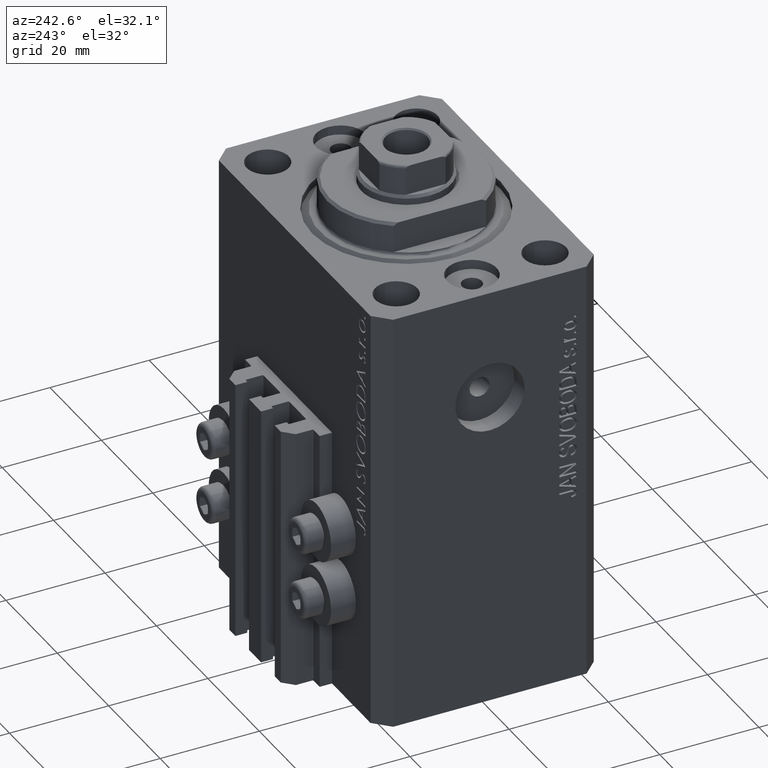
[diagram: clean part render]
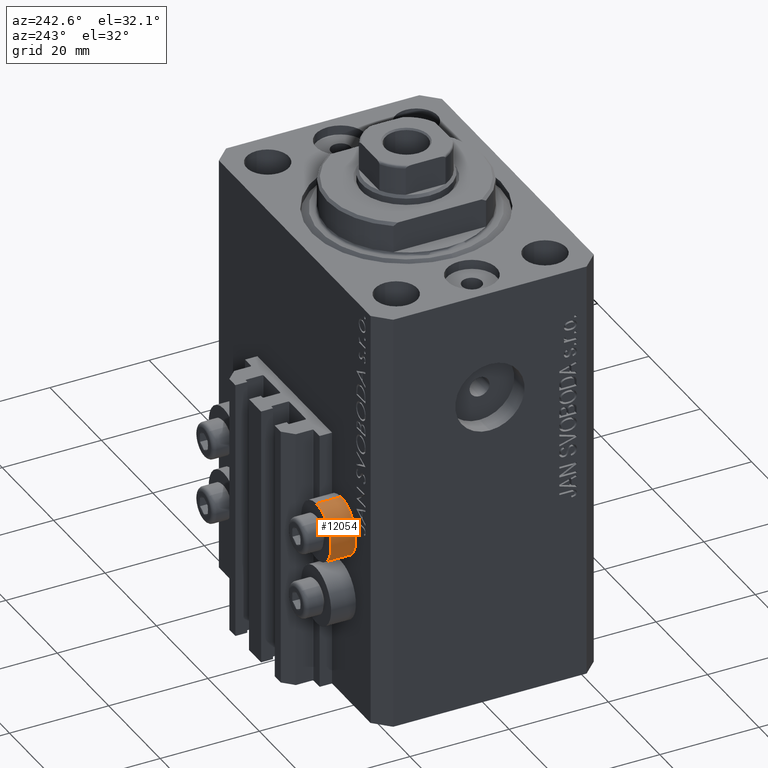
[diagram: same view with one face highlighted and labeled with its STEP entity id]
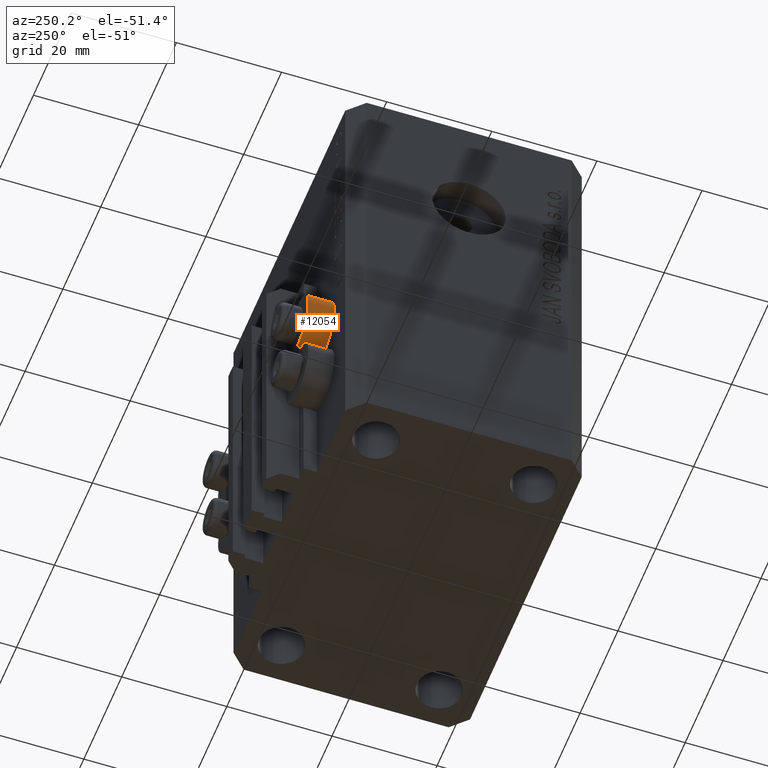
[diagram: same view with one face highlighted and labeled with its STEP entity id]
A machine part, auxiliary view. The second image highlights one B-rep face of the part: STEP entity #12054.
A second angle (auxiliary view) of the same face is appended — the face is thin or edge-on in the first view.
In plain terms, the highlighted cylindrical surface (edge-blend (fillet) strip) has radius 5.8 mm, axis along (0, 1, 0).
Its self-contained STEP definition (entity closure, byte-faithful):
#665 = DIRECTION ( 'NONE',  ( -0.000000000000000000, 1.000000000000000000, -0.000000000000000000 ) ) ;
#1052 = ORIENTED_EDGE ( 'NONE', *, *, #26560, .T. ) ;
#1516 = EDGE_CURVE ( 'NONE', #11742, #41668, #9454, .T. ) ;
#3734 = EDGE_CURVE ( 'NONE', #11742, #46290, #20355, .T. ) ;
#4649 = EDGE_LOOP ( 'NONE', ( #27795, #46681, #1052, #12217 ) ) ;
#6858 = CARTESIAN_POINT ( 'NONE',  ( -18.00000000000000355, 27.49999999996051514, -56.20000000000000284 ) ) ;
#6862 = CIRCLE ( 'NONE', #45748, 5.799999999999999822 ) ;
#7233 = LINE ( 'NONE', #36359, #24875 ) ;
#8020 = VECTOR ( 'NONE', #29176, 1000.000000000000000 ) ;
#9312 = VERTEX_POINT ( 'NONE', #19632 ) ;
#9454 = CIRCLE ( 'NONE', #27771, 5.799999999999999822 ) ;
#9611 = CARTESIAN_POINT ( 'NONE',  ( -18.00000000000000355, 22.49999999999951328, -56.20000000000000284 ) ) ;
#11145 = CARTESIAN_POINT ( 'NONE',  ( -18.00000000000000355, 27.49999999996051514, -50.39999999999999858 ) ) ;
#11624 = CYLINDRICAL_SURFACE ( 'NONE', #26663, 5.799999999999999822 ) ;
#11742 = VERTEX_POINT ( 'NONE', #9611 ) ;
#12054 = ADVANCED_FACE ( 'NONE', ( #44564 ), #11624, .T. ) ;
#12217 = ORIENTED_EDGE ( 'NONE', *, *, #13560, .F. ) ;
#13560 = EDGE_CURVE ( 'NONE', #46290, #9312, #6862, .T. ) ;
#16644 = DIRECTION ( 'NONE',  ( -0.000000000000000000, 1.000000000000000000, -0.000000000000000000 ) ) ;
#17572 = CARTESIAN_POINT ( 'NONE',  ( -18.00000000000000355, 22.49999999999951328, -50.39999999999999858 ) ) ;
#19632 = CARTESIAN_POINT ( 'NONE',  ( -18.00000000000000355, 27.49999999996051514, -44.60000000000000142 ) ) ;
#20355 = LINE ( 'NONE', #34917, #8020 ) ;
#24875 = VECTOR ( 'NONE', #39473, 1000.000000000000000 ) ;
#26560 = EDGE_CURVE ( 'NONE', #41668, #9312, #7233, .T. ) ;
#26663 = AXIS2_PLACEMENT_3D ( 'NONE', #11145, #665, #33355 ) ;
#27035 = CARTESIAN_POINT ( 'NONE',  ( -18.00000000000000355, 27.49999999996051514, -50.39999999999999858 ) ) ;
#27771 = AXIS2_PLACEMENT_3D ( 'NONE', #17572, #16644, #27850 ) ;
#27795 = ORIENTED_EDGE ( 'NONE', *, *, #3734, .F. ) ;
#27850 = DIRECTION ( 'NONE',  ( 0.000000000000000000, 0.000000000000000000, 1.000000000000000000 ) ) ;
#29176 = DIRECTION ( 'NONE',  ( -0.000000000000000000, 1.000000000000000000, -0.000000000000000000 ) ) ;
#33355 = DIRECTION ( 'NONE',  ( 0.000000000000000000, 0.000000000000000000, 1.000000000000000000 ) ) ;
#34431 = DIRECTION ( 'NONE',  ( -0.000000000000000000, 1.000000000000000000, -0.000000000000000000 ) ) ;
#34917 = CARTESIAN_POINT ( 'NONE',  ( -18.00000000000000355, 27.49999999996051514, -56.20000000000000284 ) ) ;
#36359 = CARTESIAN_POINT ( 'NONE',  ( -18.00000000000000355, 27.49999999996051514, -44.60000000000000142 ) ) ;
#38017 = DIRECTION ( 'NONE',  ( 0.000000000000000000, 0.000000000000000000, 1.000000000000000000 ) ) ;
#39473 = DIRECTION ( 'NONE',  ( -0.000000000000000000, 1.000000000000000000, -0.000000000000000000 ) ) ;
#41668 = VERTEX_POINT ( 'NONE', #42120 ) ;
#42120 = CARTESIAN_POINT ( 'NONE',  ( -18.00000000000000355, 22.49999999999951328, -44.60000000000000142 ) ) ;
#44564 = FACE_OUTER_BOUND ( 'NONE', #4649, .T. ) ;
#45748 = AXIS2_PLACEMENT_3D ( 'NONE', #27035, #34431, #38017 ) ;
#46290 = VERTEX_POINT ( 'NONE', #6858 ) ;
#46681 = ORIENTED_EDGE ( 'NONE', *, *, #1516, .T. ) ;